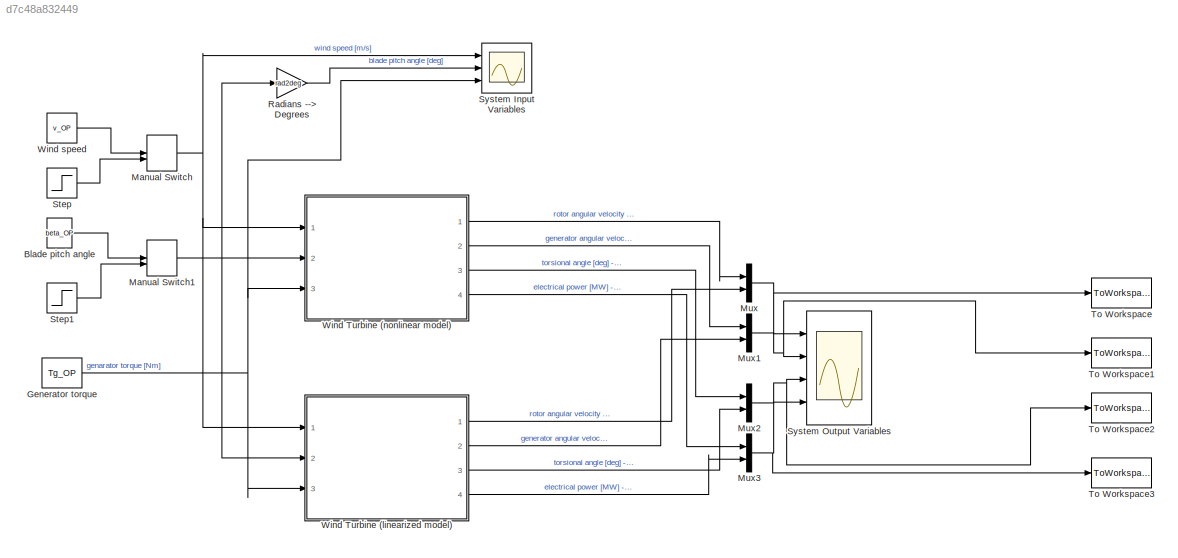
MODEL slx_d7c48a832449
KIND model
CONFIG AbsTol = auto
CONFIG EnableMultiTasking = off
CONFIG FixedStep = STEP_SIZE
CONFIG MaxStep = 0.001
CONFIG MinStep = auto
CONFIG RelTol = 1e-6
CONFIG SampleTimeConstraint = Unconstrained
CONFIG Solver = ode4
CONFIG SolverName = ode4
CONFIG StartTime = 0.0
CONFIG StopTime = TIME_SIM
BLOCK [Constant] Blade pitch angle
  Value = beta_OP
BLOCK [Constant] Generator torque
  Value = Tg_OP
BLOCK [ManualSwitch] Manual Switch
BLOCK [ManualSwitch] Manual Switch1
BLOCK [Mux] Mux
  DisplayOption = bar
  Inputs = 2
  Ports = [2, 1]
BLOCK [Mux] Mux1
  DisplayOption = bar
  Inputs = 2
  Ports = [2, 1]
BLOCK [Mux] Mux2
  DisplayOption = bar
  Inputs = 2
  Ports = [2, 1]
BLOCK [Mux] Mux3
  DisplayOption = bar
  Inputs = 2
  Ports = [2, 1]
BLOCK [Gain] Radians --> Degrees
  Gain = rad2deg
  OutDataTypeStr = Inherit: Inherit via internal rule
  ParamDataTypeStr = Inherit: Inherit via internal rule
  SaturateOnIntegerOverflow = off
BLOCK [Step] Step
  After = StepFinalValue_wind
  Before = v_OP
  SampleTime = 0
  Time = StepTime_wind
BLOCK [Step] Step1
  After = StepFinalValue_pitch
  Before = beta_OP
  SampleTime = 0
  Time = StepTime_pitch
BLOCK [Scope] System Input Variables
  NumInputPorts = 3
  Ports = [3]
  ScopeSpecificationString = C++SS(StrPVP('Location','[1, 48, 1601, 859]'),StrPVP('Open','off'),MxPVP('AxesTitles',53,'struct(''axes1'',''%<SignalLabel>'',''axes2'',''%<SignalLabel>'',''axes3'',''%<SignalLabel>'')'),MxPVP('ScopeGraphics',56,'struct(''FigureColor'',''[0.933333333333333 0.933333333333333 0.933333333333333]'',''AxesColor'',''[1 1 1]'',''AxesTickColor'',''[0 0 0]'',''LineColors'',''[0 0 1;1 0 1;0 1 1;1 0 0;0 1 0;...<+384ch>
BLOCK [Scope] System Output Variables
  NumInputPorts = 4
  Ports = [4]
  ScopeSpecificationString = Simulink.scopes.TimeScopeBlockCfg('CurrentConfiguration', extmgr.ConfigurationSet(extmgr.Configuration('Core','General UI',true,'FigureColor',[0.933333333333333 0.933333333333333 0.933333333333333]),extmgr.Configuration('Core','Source UI',true),extmgr.Configuration('Sources','WiredSimulink',true,'DataLoggingVariableName','ScopeData1','DataLoggingSaveFormat','StructureWithTime','DataLoggingDecimati...<+6835ch>
BLOCK [ToWorkspace] To Workspace
  FixptAsFi = on
  MaxDataPoints = inf
  Ports = [1]
  SampleTime = -1
  Save2DSignal = 3-D array (concatenate along third dimension)
  SaveFormat = Structure With Time
  VariableName = omega_r
BLOCK [ToWorkspace] To Workspace1
  FixptAsFi = on
  MaxDataPoints = inf
  Ports = [1]
  SampleTime = -1
  Save2DSignal = 3-D array (concatenate along third dimension)
  SaveFormat = Structure With Time
  VariableName = omega_g
BLOCK [ToWorkspace] To Workspace2
  FixptAsFi = on
  MaxDataPoints = inf
  Ports = [1]
  SampleTime = -1
  Save2DSignal = 3-D array (concatenate along third dimension)
  SaveFormat = Structure With Time
  VariableName = theta
BLOCK [ToWorkspace] To Workspace3
  FixptAsFi = on
  MaxDataPoints = inf
  Ports = [1]
  SampleTime = -1
  Save2DSignal = 3-D array (concatenate along third dimension)
  SaveFormat = Structure With Time
  VariableName = P_e
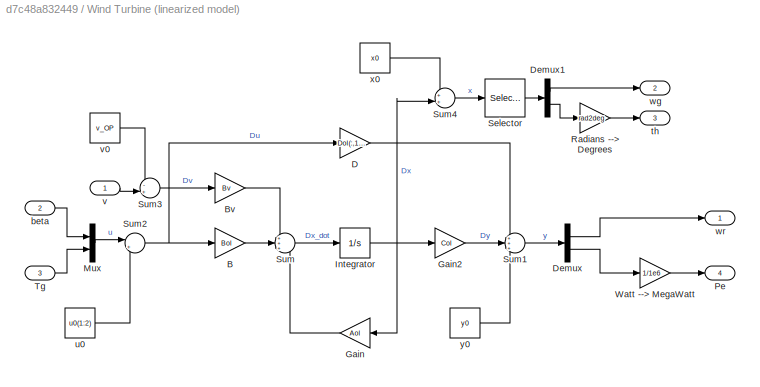
BLOCK [SubSystem] Wind Turbine (linearized model)
  Ports = [3, 4]
  RequestExecContextInheritance = off
  Variant = off
BLOCK [Gain] Wind Turbine (linearized model)/B
  Gain = Bol
  Multiplication = Matrix(K*u) (u vector)
  OutDataTypeStr = Inherit: Inherit via internal rule
  ParamDataTypeStr = Inherit: Inherit via internal rule
  SaturateOnIntegerOverflow = off
BLOCK [Gain] Wind Turbine (linearized model)/Bv
  Gain = Bv
  Multiplication = Matrix(K*u) (u vector)
  OutDataTypeStr = Inherit: Inherit via internal rule
  ParamDataTypeStr = Inherit: Inherit via internal rule
  SaturateOnIntegerOverflow = off
BLOCK [Gain] Wind Turbine (linearized model)/D
  Gain = Dol(:,1:2)
  Multiplication = Matrix(K*u) (u vector)
  OutDataTypeStr = Inherit: Inherit via internal rule
  ParamDataTypeStr = Inherit: Inherit via internal rule
  SaturateOnIntegerOverflow = off
BLOCK [Demux] Wind Turbine (linearized model)/Demux
  DisplayOption = bar
  Outputs = 2
  Ports = [1, 2]
BLOCK [Demux] Wind Turbine (linearized model)/Demux1
  DisplayOption = bar
  Outputs = 2
  Ports = [1, 2]
BLOCK [Gain] Wind Turbine (linearized model)/Gain
  Gain = Aol
  Multiplication = Matrix(K*u) (u vector)
  OutDataTypeStr = Inherit: Inherit via internal rule
  ParamDataTypeStr = Inherit: Inherit via internal rule
  SaturateOnIntegerOverflow = off
BLOCK [Gain] Wind Turbine (linearized model)/Gain2
  Gain = Col
  Multiplication = Matrix(K*u) (u vector)
  OutDataTypeStr = Inherit: Inherit via internal rule
  ParamDataTypeStr = Inherit: Inherit via internal rule
  SaturateOnIntegerOverflow = off
BLOCK [Integrator] Wind Turbine (linearized model)/Integrator
  InitialCondition = zeros(3,1)
  Ports = [1, 1]
BLOCK [Mux] Wind Turbine (linearized model)/Mux
  DisplayOption = bar
  Inputs = 2
  Ports = [2, 1]
BLOCK [Outport] Wind Turbine (linearized model)/Pe
  IconDisplay = Port number
  Port = 4
BLOCK [Gain] Wind Turbine (linearized model)/Radians --> Degrees
  Gain = rad2deg
  OutDataTypeStr = Inherit: Inherit via internal rule
  ParamDataTypeStr = Inherit: Inherit via internal rule
  SaturateOnIntegerOverflow = off
BLOCK [Selector] Wind Turbine (linearized model)/Selector
  IndexOptions = Index vector (dialog)
  Indices = [2 3]
  InputPortWidth = 3
  OutputSizes = 1
  Ports = [1, 1]
BLOCK [Sum] Wind Turbine (linearized model)/Sum
  IconShape = round
  InputSameDT = off
  Inputs = +++
  OutDataTypeStr = Inherit: Inherit via internal rule
  Ports = [3, 1]
  SaturateOnIntegerOverflow = off
BLOCK [Sum] Wind Turbine (linearized model)/Sum1
  IconShape = round
  InputSameDT = off
  Inputs = +++
  OutDataTypeStr = Inherit: Inherit via internal rule
  Ports = [3, 1]
  SaturateOnIntegerOverflow = off
BLOCK [Sum] Wind Turbine (linearized model)/Sum2
  IconShape = round
  InputSameDT = off
  Inputs = |+-
  OutDataTypeStr = Inherit: Inherit via internal rule
  Ports = [2, 1]
  SaturateOnIntegerOverflow = off
BLOCK [Sum] Wind Turbine (linearized model)/Sum3
  IconShape = round
  InputSameDT = off
  Inputs = -+|
  OutDataTypeStr = Inherit: Inherit via internal rule
  Ports = [2, 1]
  SaturateOnIntegerOverflow = off
BLOCK [Sum] Wind Turbine (linearized model)/Sum4
  IconShape = round
  InputSameDT = off
  Inputs = ++|
  OutDataTypeStr = Inherit: Inherit via internal rule
  Ports = [2, 1]
  SaturateOnIntegerOverflow = off
BLOCK [Inport] Wind Turbine (linearized model)/Tg
  IconDisplay = Port number
  Port = 3
BLOCK [Gain] Wind Turbine (linearized model)/Watt --> MegaWatt
  Gain = 1/1e6
  OutDataTypeStr = Inherit: Inherit via internal rule
  ParamDataTypeStr = Inherit: Inherit via internal rule
  SaturateOnIntegerOverflow = off
BLOCK [Inport] Wind Turbine (linearized model)/beta
  IconDisplay = Port number
  Port = 2
BLOCK [Outport] Wind Turbine (linearized model)/th
  IconDisplay = Port number
  Port = 3
BLOCK [Constant] Wind Turbine (linearized model)/u0
  Value = u0(1:2)
BLOCK [Inport] Wind Turbine (linearized model)/v
  IconDisplay = Port number
BLOCK [Constant] Wind Turbine (linearized model)/v0
  Value = v_OP
BLOCK [Outport] Wind Turbine (linearized model)/wg
  IconDisplay = Port number
  Port = 2
BLOCK [Outport] Wind Turbine (linearized model)/wr
  IconDisplay = Port number
BLOCK [Constant] Wind Turbine (linearized model)/x0
  Value = x0
BLOCK [Constant] Wind Turbine (linearized model)/y0
  Value = y0
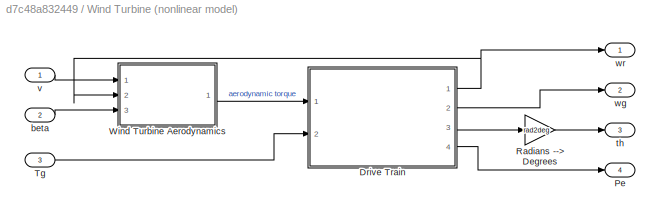
BLOCK [SubSystem] Wind Turbine (nonlinear model)
  Ports = [3, 4]
  RequestExecContextInheritance = off
  Variant = off
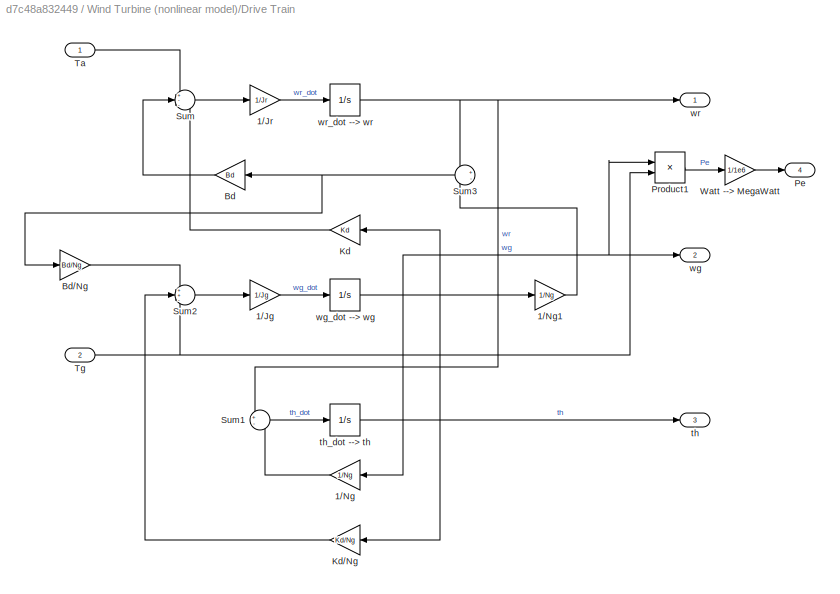
BLOCK [SubSystem] Wind Turbine (nonlinear model)/Drive Train
  Ports = [2, 4]
  RequestExecContextInheritance = off
  Variant = off
BLOCK [Gain] Wind Turbine (nonlinear model)/Drive Train/1//Jg
  Gain = 1/Jg
  OutDataTypeStr = Inherit: Inherit via internal rule
  ParamDataTypeStr = Inherit: Inherit via internal rule
  SaturateOnIntegerOverflow = off
BLOCK [Gain] Wind Turbine (nonlinear model)/Drive Train/1//Jr
  Gain = 1/Jr
  OutDataTypeStr = Inherit: Inherit via internal rule
  ParamDataTypeStr = Inherit: Inherit via internal rule
  SaturateOnIntegerOverflow = off
BLOCK [Gain] Wind Turbine (nonlinear model)/Drive Train/1//Ng
  Gain = 1/Ng
  OutDataTypeStr = Inherit: Inherit via internal rule
  ParamDataTypeStr = Inherit: Inherit via internal rule
  SaturateOnIntegerOverflow = off
BLOCK [Gain] Wind Turbine (nonlinear model)/Drive Train/1//Ng1
  Gain = 1/Ng
  OutDataTypeStr = Inherit: Inherit via internal rule
  ParamDataTypeStr = Inherit: Inherit via internal rule
  SaturateOnIntegerOverflow = off
BLOCK [Gain] Wind Turbine (nonlinear model)/Drive Train/Bd
  Gain = Bd
  OutDataTypeStr = Inherit: Inherit via internal rule
  ParamDataTypeStr = Inherit: Inherit via internal rule
  SaturateOnIntegerOverflow = off
BLOCK [Gain] Wind Turbine (nonlinear model)/Drive Train/Bd//Ng
  Gain = Bd/Ng
  OutDataTypeStr = Inherit: Inherit via internal rule
  ParamDataTypeStr = Inherit: Inherit via internal rule
  SaturateOnIntegerOverflow = off
BLOCK [Gain] Wind Turbine (nonlinear model)/Drive Train/Kd
  Gain = Kd
  OutDataTypeStr = Inherit: Inherit via internal rule
  ParamDataTypeStr = Inherit: Inherit via internal rule
  SaturateOnIntegerOverflow = off
BLOCK [Gain] Wind Turbine (nonlinear model)/Drive Train/Kd//Ng
  Gain = Kd/Ng
  OutDataTypeStr = Inherit: Inherit via internal rule
  ParamDataTypeStr = Inherit: Inherit via internal rule
  SaturateOnIntegerOverflow = off
BLOCK [Outport] Wind Turbine (nonlinear model)/Drive Train/Pe
  IconDisplay = Port number
  Port = 4
BLOCK [Product] Wind Turbine (nonlinear model)/Drive Train/Product1
  InputSameDT = off
  OutDataTypeStr = Inherit: Inherit via internal rule
  Ports = [2, 1]
  RndMeth = Floor
  SaturateOnIntegerOverflow = off
BLOCK [Sum] Wind Turbine (nonlinear model)/Drive Train/Sum
  IconShape = round
  InputSameDT = off
  Inputs = +--
  OutDataTypeStr = Inherit: Inherit via internal rule
  Ports = [3, 1]
  SaturateOnIntegerOverflow = off
BLOCK [Sum] Wind Turbine (nonlinear model)/Drive Train/Sum1
  IconShape = round
  InputSameDT = off
  Inputs = +-
  OutDataTypeStr = Inherit: Inherit via internal rule
  Ports = [2, 1]
  SaturateOnIntegerOverflow = off
BLOCK [Sum] Wind Turbine (nonlinear model)/Drive Train/Sum2
  IconShape = round
  InputSameDT = off
  Inputs = ++-
  OutDataTypeStr = Inherit: Inherit via internal rule
  Ports = [3, 1]
  SaturateOnIntegerOverflow = off
BLOCK [Sum] Wind Turbine (nonlinear model)/Drive Train/Sum3
  IconShape = round
  InputSameDT = off
  Inputs = +-
  OutDataTypeStr = Inherit: Inherit via internal rule
  Ports = [2, 1]
  SaturateOnIntegerOverflow = off
BLOCK [Inport] Wind Turbine (nonlinear model)/Drive Train/Ta
  IconDisplay = Port number
BLOCK [Inport] Wind Turbine (nonlinear model)/Drive Train/Tg
  IconDisplay = Port number
  Port = 2
BLOCK [Gain] Wind Turbine (nonlinear model)/Drive Train/Watt --> MegaWatt
  Gain = 1/1e6
  OutDataTypeStr = Inherit: Inherit via internal rule
  ParamDataTypeStr = Inherit: Inherit via internal rule
  SaturateOnIntegerOverflow = off
BLOCK [Outport] Wind Turbine (nonlinear model)/Drive Train/th
  IconDisplay = Port number
  Port = 3
BLOCK [Integrator] Wind Turbine (nonlinear model)/Drive Train/th_dot --> th
  InitialCondition = x0(3)
  LowerSaturationLimit = 0
  Ports = [1, 1]
  Priority = 3
BLOCK [Outport] Wind Turbine (nonlinear model)/Drive Train/wg
  IconDisplay = Port number
  Port = 2
BLOCK [Integrator] Wind Turbine (nonlinear model)/Drive Train/wg_dot --> wg
  InitialCondition = x0(2)
  LowerSaturationLimit = 0
  Ports = [1, 1]
  Priority = 2
BLOCK [Outport] Wind Turbine (nonlinear model)/Drive Train/wr
  IconDisplay = Port number
BLOCK [Integrator] Wind Turbine (nonlinear model)/Drive Train/wr_dot --> wr
  InitialCondition = x0(1)
  LowerSaturationLimit = 0
  Ports = [1, 1]
  Priority = 1
BLOCK [Outport] Wind Turbine (nonlinear model)/Pe
  IconDisplay = Port number
  Port = 4
BLOCK [Gain] Wind Turbine (nonlinear model)/Radians --> Degrees
  Gain = rad2deg
  OutDataTypeStr = Inherit: Inherit via internal rule
  ParamDataTypeStr = Inherit: Inherit via internal rule
  SaturateOnIntegerOverflow = off
BLOCK [Inport] Wind Turbine (nonlinear model)/Tg
  IconDisplay = Port number
  Port = 3
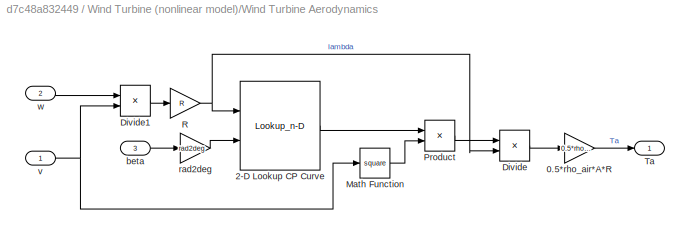
BLOCK [SubSystem] Wind Turbine (nonlinear model)/Wind Turbine Aerodynamics
  Ports = [3, 1]
  RequestExecContextInheritance = off
  Variant = off
BLOCK [Gain] Wind Turbine (nonlinear model)/Wind Turbine Aerodynamics/0.5*rho_air*A*R
  Gain = 0.5*rho_air*A*R
  OutDataTypeStr = Inherit: Inherit via internal rule
  ParamDataTypeStr = Inherit: Inherit via internal rule
  SaturateOnIntegerOverflow = off
BLOCK [Lookup_n-D] Wind Turbine (nonlinear model)/Wind Turbine Aerodynamics/2-D Lookup CP Curve
  BreakpointsForDimension1 = Lambda0
  BreakpointsForDimension2 = Pitch0
  BreakpointsForDimension3 = CP0'
  DiagnosticForOutOfRangeInput = Warning
  Ports = [2, 1]
  RndMeth = Simplest
  Table = CP0
BLOCK [Product] Wind Turbine (nonlinear model)/Wind Turbine Aerodynamics/Divide
  InputSameDT = off
  Inputs = */
  OutDataTypeStr = Inherit: Inherit via internal rule
  Ports = [2, 1]
  RndMeth = Floor
  SaturateOnIntegerOverflow = off
BLOCK [Product] Wind Turbine (nonlinear model)/Wind Turbine Aerodynamics/Divide1
  InputSameDT = off
  Inputs = */
  OutDataTypeStr = Inherit: Inherit via internal rule
  Ports = [2, 1]
  RndMeth = Floor
  SaturateOnIntegerOverflow = off
BLOCK [Math] Wind Turbine (nonlinear model)/Wind Turbine Aerodynamics/Math Function
  Operator = square
  Ports = [1, 1]
BLOCK [Product] Wind Turbine (nonlinear model)/Wind Turbine Aerodynamics/Product
  InputSameDT = off
  OutDataTypeStr = Inherit: Inherit via internal rule
  Ports = [2, 1]
  RndMeth = Floor
  SaturateOnIntegerOverflow = off
BLOCK [Gain] Wind Turbine (nonlinear model)/Wind Turbine Aerodynamics/R
  Gain = R
  OutDataTypeStr = Inherit: Inherit via internal rule
  ParamDataTypeStr = Inherit: Inherit via internal rule
  SaturateOnIntegerOverflow = off
BLOCK [Outport] Wind Turbine (nonlinear model)/Wind Turbine Aerodynamics/Ta
  IconDisplay = Port number
BLOCK [Inport] Wind Turbine (nonlinear model)/Wind Turbine Aerodynamics/beta
  IconDisplay = Port number
  Port = 3
BLOCK [Gain] Wind Turbine (nonlinear model)/Wind Turbine Aerodynamics/rad2deg
  Gain = rad2deg
  OutDataTypeStr = Inherit: Inherit via internal rule
  ParamDataTypeStr = Inherit: Inherit via internal rule
  SaturateOnIntegerOverflow = off
BLOCK [Inport] Wind Turbine (nonlinear model)/Wind Turbine Aerodynamics/v
  IconDisplay = Port number
BLOCK [Inport] Wind Turbine (nonlinear model)/Wind Turbine Aerodynamics/w
  IconDisplay = Port number
  Port = 2
BLOCK [Inport] Wind Turbine (nonlinear model)/beta
  IconDisplay = Port number
  Port = 2
BLOCK [Outport] Wind Turbine (nonlinear model)/th
  IconDisplay = Port number
  Port = 3
BLOCK [Inport] Wind Turbine (nonlinear model)/v
  IconDisplay = Port number
BLOCK [Outport] Wind Turbine (nonlinear model)/wg
  IconDisplay = Port number
  Port = 2
BLOCK [Outport] Wind Turbine (nonlinear model)/wr
  IconDisplay = Port number
BLOCK [Constant] Wind speed
  Value = v_OP
LINE Blade pitch angle:1 -> Manual Switch1:1
NET Generator torque:1 -> System Input Variables:3, Wind Turbine (linearized model):3, Wind Turbine (nonlinear model):3
NET Manual Switch1:1 -> Radians --> Degrees:1, Wind Turbine (linearized model):2, Wind Turbine (nonlinear model):2
NET Manual Switch:1 -> System Input Variables:1, Wind Turbine (linearized model):1, Wind Turbine (nonlinear model):1
NET Mux1:1 -> System Output Variables:2, To Workspace1:1
NET Mux2:1 -> System Output Variables:3, To Workspace2:1
NET Mux3:1 -> System Output Variables:4, To Workspace3:1
NET Mux:1 -> System Output Variables:1, To Workspace:1
LINE Radians --> Degrees:1 -> System Input Variables:2
LINE Step1:1 -> Manual Switch1:2
LINE Step:1 -> Manual Switch:2
LINE Wind Turbine (linearized model)/B:1 -> Wind Turbine (linearized model)/Sum:2
LINE Wind Turbine (linearized model)/Bv:1 -> Wind Turbine (linearized model)/Sum:1
LINE Wind Turbine (linearized model)/D:1 -> Wind Turbine (linearized model)/Sum1:1
LINE Wind Turbine (linearized model)/Demux1:1 -> Wind Turbine (linearized model)/wg:1
LINE Wind Turbine (linearized model)/Demux1:2 -> Wind Turbine (linearized model)/Radians --> Degrees:1
LINE Wind Turbine (linearized model)/Demux:1 -> Wind Turbine (linearized model)/wr:1
LINE Wind Turbine (linearized model)/Demux:2 -> Wind Turbine (linearized model)/Watt --> MegaWatt:1
LINE Wind Turbine (linearized model)/Gain2:1 -> Wind Turbine (linearized model)/Sum1:2
LINE Wind Turbine (linearized model)/Gain:1 -> Wind Turbine (linearized model)/Sum:3
NET Wind Turbine (linearized model)/Integrator:1 -> Wind Turbine (linearized model)/Gain2:1, Wind Turbine (linearized model)/Gain:1, Wind Turbine (linearized model)/Sum4:2
LINE Wind Turbine (linearized model)/Mux:1 -> Wind Turbine (linearized model)/Sum2:1
LINE Wind Turbine (linearized model)/Radians --> Degrees:1 -> Wind Turbine (linearized model)/th:1
LINE Wind Turbine (linearized model)/Selector:1 -> Wind Turbine (linearized model)/Demux1:1
LINE Wind Turbine (linearized model)/Sum1:1 -> Wind Turbine (linearized model)/Demux:1
NET Wind Turbine (linearized model)/Sum2:1 -> Wind Turbine (linearized model)/B:1, Wind Turbine (linearized model)/D:1
LINE Wind Turbine (linearized model)/Sum3:1 -> Wind Turbine (linearized model)/Bv:1
LINE Wind Turbine (linearized model)/Sum4:1 -> Wind Turbine (linearized model)/Selector:1
LINE Wind Turbine (linearized model)/Sum:1 -> Wind Turbine (linearized model)/Integrator:1
LINE Wind Turbine (linearized model)/Tg:1 -> Wind Turbine (linearized model)/Mux:2
LINE Wind Turbine (linearized model)/Watt --> MegaWatt:1 -> Wind Turbine (linearized model)/Pe:1
LINE Wind Turbine (linearized model)/beta:1 -> Wind Turbine (linearized model)/Mux:1
LINE Wind Turbine (linearized model)/u0:1 -> Wind Turbine (linearized model)/Sum2:2
LINE Wind Turbine (linearized model)/v0:1 -> Wind Turbine (linearized model)/Sum3:1
LINE Wind Turbine (linearized model)/v:1 -> Wind Turbine (linearized model)/Sum3:2
LINE Wind Turbine (linearized model)/x0:1 -> Wind Turbine (linearized model)/Sum4:1
LINE Wind Turbine (linearized model)/y0:1 -> Wind Turbine (linearized model)/Sum1:3
LINE Wind Turbine (linearized model):1 -> Mux:2
LINE Wind Turbine (linearized model):2 -> Mux1:2
LINE Wind Turbine (linearized model):3 -> Mux2:2
LINE Wind Turbine (linearized model):4 -> Mux3:2
LINE Wind Turbine (nonlinear model)/Drive Train/1//Jg:1 -> Wind Turbine (nonlinear model)/Drive Train/wg_dot --> wg:1
LINE Wind Turbine (nonlinear model)/Drive Train/1//Jr:1 -> Wind Turbine (nonlinear model)/Drive Train/wr_dot --> wr:1
LINE Wind Turbine (nonlinear model)/Drive Train/1//Ng1:1 -> Wind Turbine (nonlinear model)/Drive Train/Sum3:2
LINE Wind Turbine (nonlinear model)/Drive Train/1//Ng:1 -> Wind Turbine (nonlinear model)/Drive Train/Sum1:2
LINE Wind Turbine (nonlinear model)/Drive Train/Bd//Ng:1 -> Wind Turbine (nonlinear model)/Drive Train/Sum2:1
LINE Wind Turbine (nonlinear model)/Drive Train/Bd:1 -> Wind Turbine (nonlinear model)/Drive Train/Sum:2
LINE Wind Turbine (nonlinear model)/Drive Train/Kd//Ng:1 -> Wind Turbine (nonlinear model)/Drive Train/Sum2:2
LINE Wind Turbine (nonlinear model)/Drive Train/Kd:1 -> Wind Turbine (nonlinear model)/Drive Train/Sum:3
LINE Wind Turbine (nonlinear model)/Drive Train/Product1:1 -> Wind Turbine (nonlinear model)/Drive Train/Watt --> MegaWatt:1
LINE Wind Turbine (nonlinear model)/Drive Train/Sum1:1 -> Wind Turbine (nonlinear model)/Drive Train/th_dot --> th:1
LINE Wind Turbine (nonlinear model)/Drive Train/Sum2:1 -> Wind Turbine (nonlinear model)/Drive Train/1//Jg:1
NET Wind Turbine (nonlinear model)/Drive Train/Sum3:1 -> Wind Turbine (nonlinear model)/Drive Train/Bd//Ng:1, Wind Turbine (nonlinear model)/Drive Train/Bd:1
LINE Wind Turbine (nonlinear model)/Drive Train/Sum:1 -> Wind Turbine (nonlinear model)/Drive Train/1//Jr:1
LINE Wind Turbine (nonlinear model)/Drive Train/Ta:1 -> Wind Turbine (nonlinear model)/Drive Train/Sum:1
NET Wind Turbine (nonlinear model)/Drive Train/Tg:1 -> Wind Turbine (nonlinear model)/Drive Train/Product1:2, Wind Turbine (nonlinear model)/Drive Train/Sum2:3
LINE Wind Turbine (nonlinear model)/Drive Train/Watt --> MegaWatt:1 -> Wind Turbine (nonlinear model)/Drive Train/Pe:1
NET Wind Turbine (nonlinear model)/Drive Train/th_dot --> th:1 -> Wind Turbine (nonlinear model)/Drive Train/Kd//Ng:1, Wind Turbine (nonlinear model)/Drive Train/Kd:1, Wind Turbine (nonlinear model)/Drive Train/th:1
NET Wind Turbine (nonlinear model)/Drive Train/wg_dot --> wg:1 -> Wind Turbine (nonlinear model)/Drive Train/1//Ng1:1, Wind Turbine (nonlinear model)/Drive Train/1//Ng:1, Wind Turbine (nonlinear model)/Drive Train/Product1:1, Wind Turbine (nonlinear model)/Drive Train/wg:1
NET Wind Turbine (nonlinear model)/Drive Train/wr_dot --> wr:1 -> Wind Turbine (nonlinear model)/Drive Train/Sum1:1, Wind Turbine (nonlinear model)/Drive Train/Sum3:1, Wind Turbine (nonlinear model)/Drive Train/wr:1
NET Wind Turbine (nonlinear model)/Drive Train:1 -> Wind Turbine (nonlinear model)/Wind Turbine Aerodynamics:2, Wind Turbine (nonlinear model)/wr:1
LINE Wind Turbine (nonlinear model)/Drive Train:2 -> Wind Turbine (nonlinear model)/wg:1
LINE Wind Turbine (nonlinear model)/Drive Train:3 -> Wind Turbine (nonlinear model)/Radians --> Degrees:1
LINE Wind Turbine (nonlinear model)/Drive Train:4 -> Wind Turbine (nonlinear model)/Pe:1
LINE Wind Turbine (nonlinear model)/Radians --> Degrees:1 -> Wind Turbine (nonlinear model)/th:1
LINE Wind Turbine (nonlinear model)/Tg:1 -> Wind Turbine (nonlinear model)/Drive Train:2
LINE Wind Turbine (nonlinear model)/Wind Turbine Aerodynamics/0.5*rho_air*A*R:1 -> Wind Turbine (nonlinear model)/Wind Turbine Aerodynamics/Ta:1
LINE Wind Turbine (nonlinear model)/Wind Turbine Aerodynamics/2-D Lookup CP Curve:1 -> Wind Turbine (nonlinear model)/Wind Turbine Aerodynamics/Product:1
LINE Wind Turbine (nonlinear model)/Wind Turbine Aerodynamics/Divide1:1 -> Wind Turbine (nonlinear model)/Wind Turbine Aerodynamics/R:1
LINE Wind Turbine (nonlinear model)/Wind Turbine Aerodynamics/Divide:1 -> Wind Turbine (nonlinear model)/Wind Turbine Aerodynamics/0.5*rho_air*A*R:1
LINE Wind Turbine (nonlinear model)/Wind Turbine Aerodynamics/Math Function:1 -> Wind Turbine (nonlinear model)/Wind Turbine Aerodynamics/Product:2
LINE Wind Turbine (nonlinear model)/Wind Turbine Aerodynamics/Product:1 -> Wind Turbine (nonlinear model)/Wind Turbine Aerodynamics/Divide:1
NET Wind Turbine (nonlinear model)/Wind Turbine Aerodynamics/R:1 -> Wind Turbine (nonlinear model)/Wind Turbine Aerodynamics/2-D Lookup CP Curve:1, Wind Turbine (nonlinear model)/Wind Turbine Aerodynamics/Divide:2
LINE Wind Turbine (nonlinear model)/Wind Turbine Aerodynamics/beta:1 -> Wind Turbine (nonlinear model)/Wind Turbine Aerodynamics/rad2deg:1
LINE Wind Turbine (nonlinear model)/Wind Turbine Aerodynamics/rad2deg:1 -> Wind Turbine (nonlinear model)/Wind Turbine Aerodynamics/2-D Lookup CP Curve:2
NET Wind Turbine (nonlinear model)/Wind Turbine Aerodynamics/v:1 -> Wind Turbine (nonlinear model)/Wind Turbine Aerodynamics/Divide1:2, Wind Turbine (nonlinear model)/Wind Turbine Aerodynamics/Math Function:1
LINE Wind Turbine (nonlinear model)/Wind Turbine Aerodynamics/w:1 -> Wind Turbine (nonlinear model)/Wind Turbine Aerodynamics/Divide1:1
LINE Wind Turbine (nonlinear model)/Wind Turbine Aerodynamics:1 -> Wind Turbine (nonlinear model)/Drive Train:1
LINE Wind Turbine (nonlinear model)/beta:1 -> Wind Turbine (nonlinear model)/Wind Turbine Aerodynamics:3
LINE Wind Turbine (nonlinear model)/v:1 -> Wind Turbine (nonlinear model)/Wind Turbine Aerodynamics:1
LINE Wind Turbine (nonlinear model):1 -> Mux:1
LINE Wind Turbine (nonlinear model):2 -> Mux1:1
LINE Wind Turbine (nonlinear model):3 -> Mux2:1
LINE Wind Turbine (nonlinear model):4 -> Mux3:1
LINE Wind speed:1 -> Manual Switch:1
note: NET lines group one-source signal fan-out (src -> all destinations, sorted); 1:1 wires keep LINE
